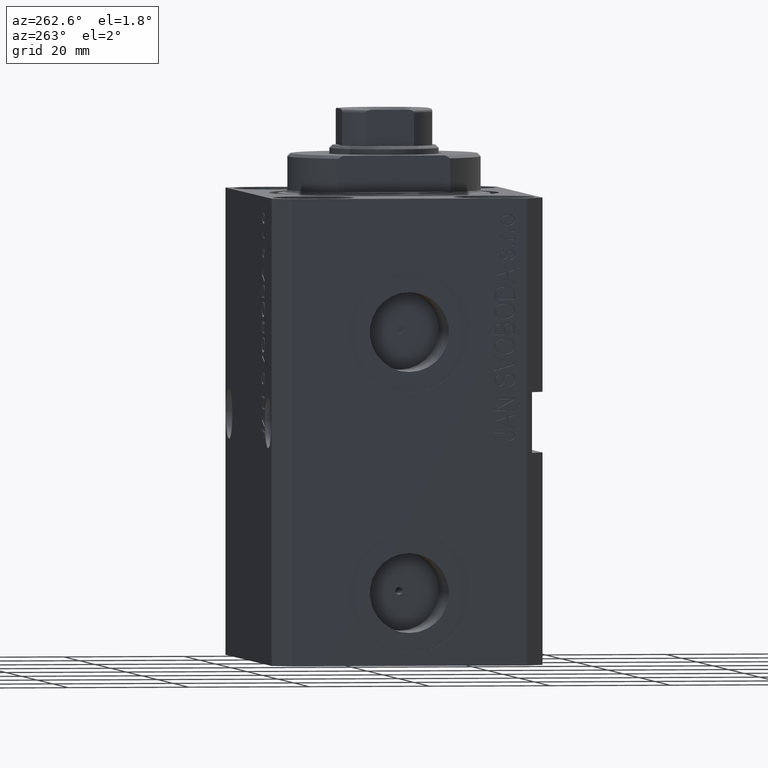
[diagram: clean part render]
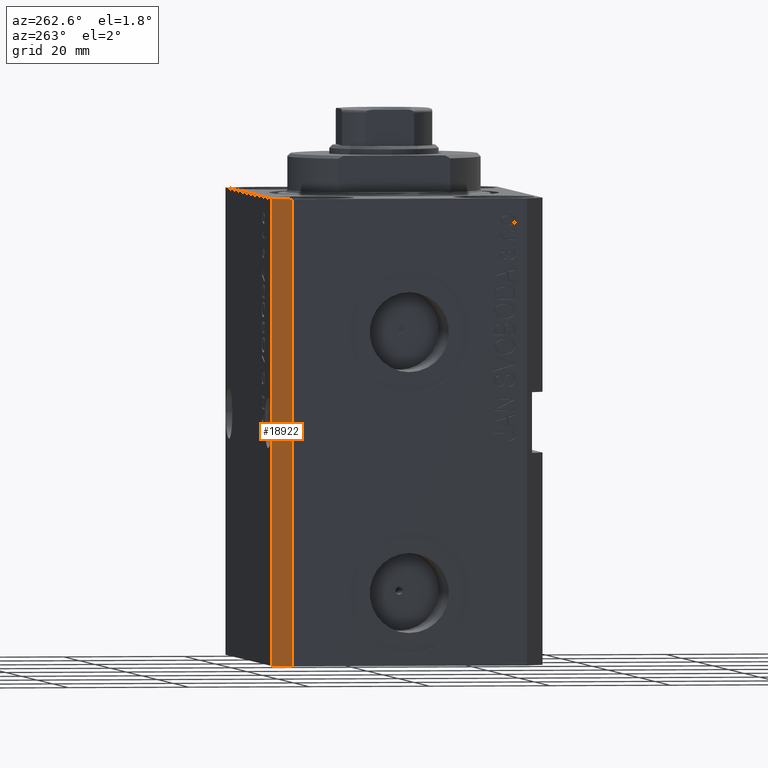
[diagram: same view with one face highlighted and labeled with its STEP entity id]
A machine part, auxiliary view. The second image highlights one B-rep face of the part: STEP entity #18922.
In plain terms, the highlighted planar face has unit normal (-0.7071, 0.7071, 0).
Its self-contained STEP definition (entity closure, byte-faithful):
#337 = ORIENTED_EDGE ( 'NONE', *, *, #7610, .T. ) ;
#3552 = CARTESIAN_POINT ( 'NONE',  ( -29.49999999999650413, 22.49999999999949907, -77.00000000000000000 ) ) ;
#3602 = CARTESIAN_POINT ( 'NONE',  ( -29.49999999999650413, 22.49999999999949907, -77.00000000000000000 ) ) ;
#4891 = ORIENTED_EDGE ( 'NONE', *, *, #32515, .F. ) ;
#7265 = LINE ( 'NONE', #30918, #21690 ) ;
#7610 = EDGE_CURVE ( 'NONE', #35316, #12378, #14810, .T. ) ;
#12378 = VERTEX_POINT ( 'NONE', #36876 ) ;
#14628 = CARTESIAN_POINT ( 'NONE',  ( -32.49999999999650413, 19.49999999999949907, -77.00000000000000000 ) ) ;
#14810 = LINE ( 'NONE', #43424, #40971 ) ;
#15776 = VECTOR ( 'NONE', #32003, 1000.000000000000114 ) ;
#17413 = DIRECTION ( 'NONE',  ( -0.7071067811865474617, -0.7071067811865474617, 0.000000000000000000 ) ) ;
#18746 = EDGE_CURVE ( 'NONE', #35718, #35316, #21302, .T. ) ;
#18922 = ADVANCED_FACE ( 'NONE', ( #28931 ), #32812, .T. ) ;
#20899 = VERTEX_POINT ( 'NONE', #27744 ) ;
#21302 = LINE ( 'NONE', #3602, #15776 ) ;
#21690 = VECTOR ( 'NONE', #24544, 1000.000000000000114 ) ;
#23887 = EDGE_CURVE ( 'NONE', #20899, #12378, #7265, .T. ) ;
#24544 = DIRECTION ( 'NONE',  ( -0.7071067811865474617, -0.7071067811865474617, 0.000000000000000000 ) ) ;
#25193 = AXIS2_PLACEMENT_3D ( 'NONE', #3552, #28077, #17413 ) ;
#27744 = CARTESIAN_POINT ( 'NONE',  ( -29.49999999999650413, 22.49999999999949907, 0.000000000000000000 ) ) ;
#28077 = DIRECTION ( 'NONE',  ( -0.7071067811865475727, 0.7071067811865475727, 0.000000000000000000 ) ) ;
#28931 = FACE_OUTER_BOUND ( 'NONE', #30536, .T. ) ;
#29231 = CARTESIAN_POINT ( 'NONE',  ( -29.49999999999650413, 22.49999999999949907, -77.00000000000000000 ) ) ;
#29971 = CARTESIAN_POINT ( 'NONE',  ( -29.49999999999650413, 22.49999999999949907, -77.00000000000000000 ) ) ;
#30536 = EDGE_LOOP ( 'NONE', ( #42678, #4891, #43290, #337 ) ) ;
#30918 = CARTESIAN_POINT ( 'NONE',  ( -29.49999999999650413, 22.49999999999949907, 0.000000000000000000 ) ) ;
#31384 = VECTOR ( 'NONE', #35600, 1000.000000000000000 ) ;
#32003 = DIRECTION ( 'NONE',  ( -0.7071067811865474617, -0.7071067811865474617, 0.000000000000000000 ) ) ;
#32515 = EDGE_CURVE ( 'NONE', #35718, #20899, #35369, .T. ) ;
#32812 = PLANE ( 'NONE',  #25193 ) ;
#32949 = DIRECTION ( 'NONE',  ( 0.000000000000000000, 0.000000000000000000, 1.000000000000000000 ) ) ;
#35316 = VERTEX_POINT ( 'NONE', #14628 ) ;
#35369 = LINE ( 'NONE', #29231, #31384 ) ;
#35600 = DIRECTION ( 'NONE',  ( 0.000000000000000000, 0.000000000000000000, 1.000000000000000000 ) ) ;
#35718 = VERTEX_POINT ( 'NONE', #29971 ) ;
#36876 = CARTESIAN_POINT ( 'NONE',  ( -32.49999999999650413, 19.49999999999949907, 0.000000000000000000 ) ) ;
#40971 = VECTOR ( 'NONE', #32949, 1000.000000000000000 ) ;
#42678 = ORIENTED_EDGE ( 'NONE', *, *, #23887, .F. ) ;
#43290 = ORIENTED_EDGE ( 'NONE', *, *, #18746, .T. ) ;
#43424 = CARTESIAN_POINT ( 'NONE',  ( -32.49999999999650413, 19.49999999999949907, -77.00000000000000000 ) ) ;